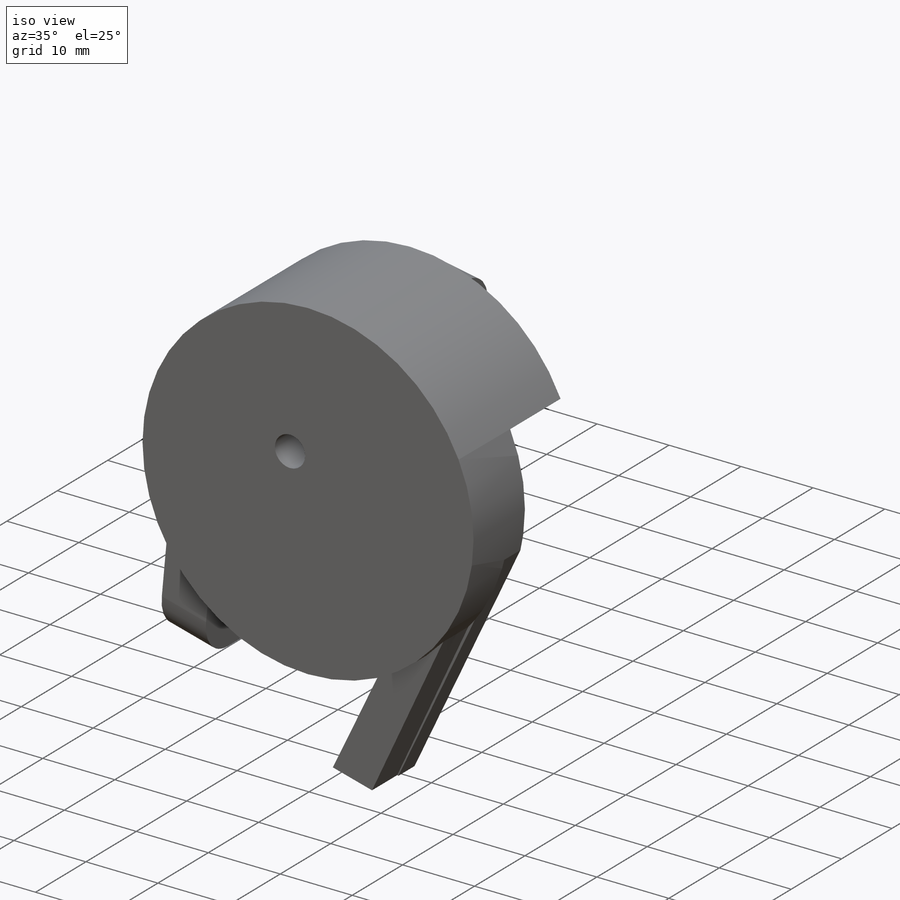
[diagram: iso view]
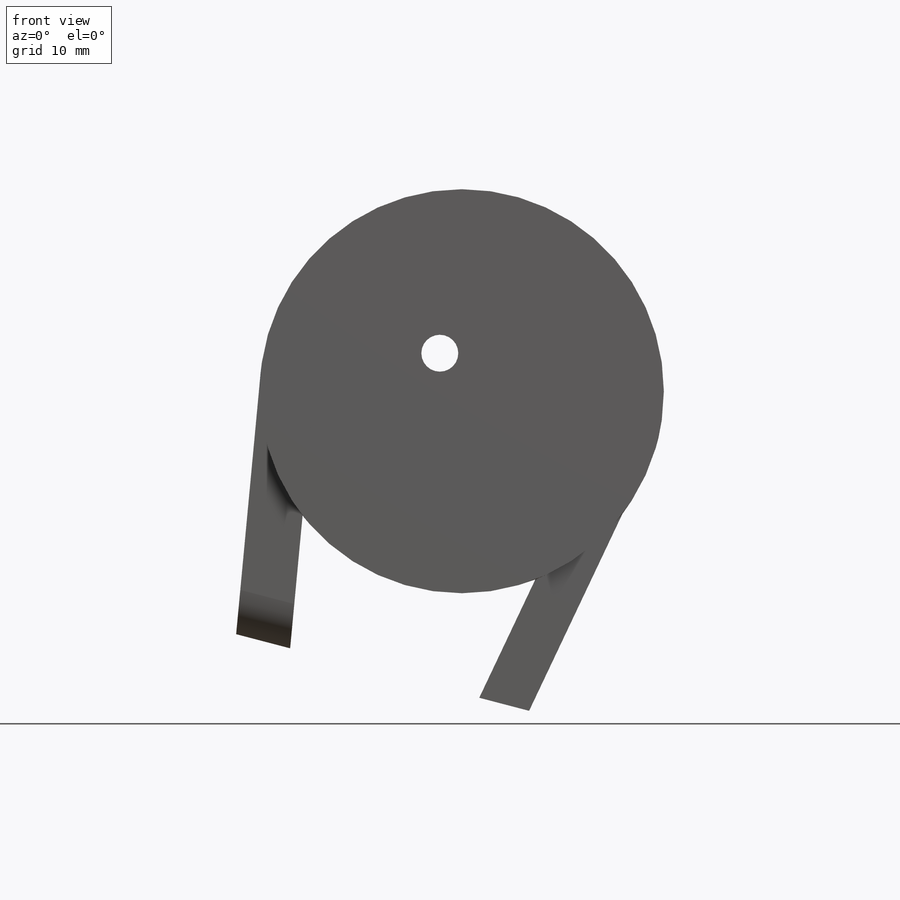
[diagram: front view]
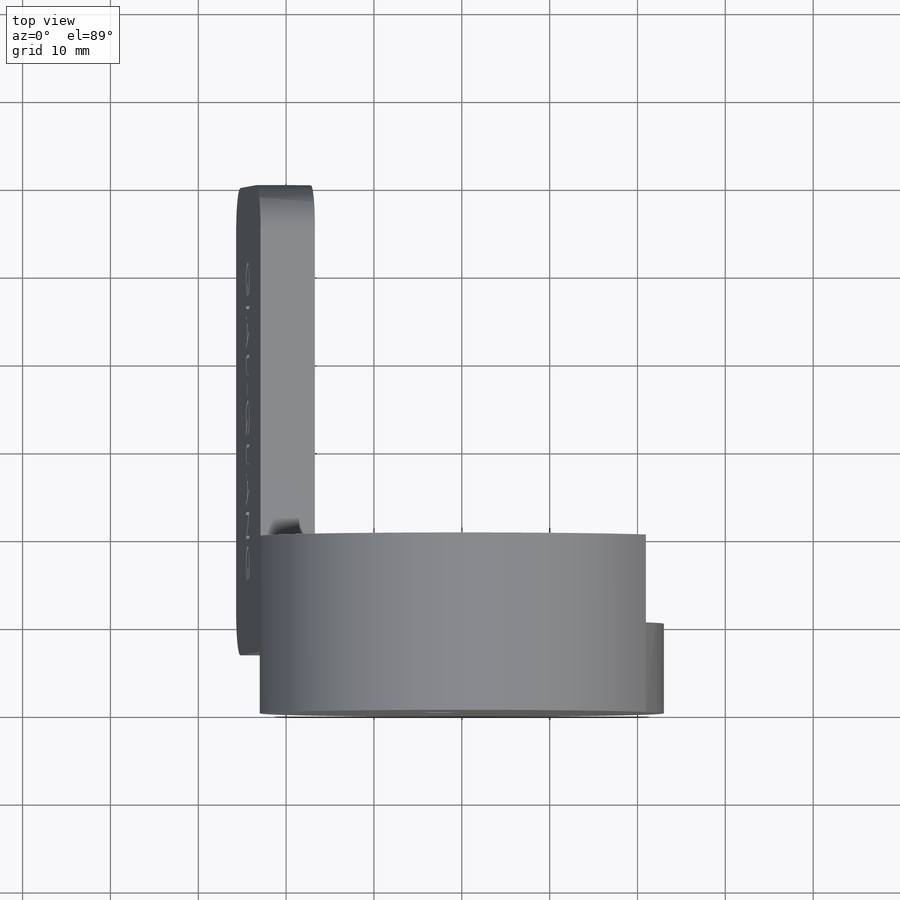
[diagram: top view]
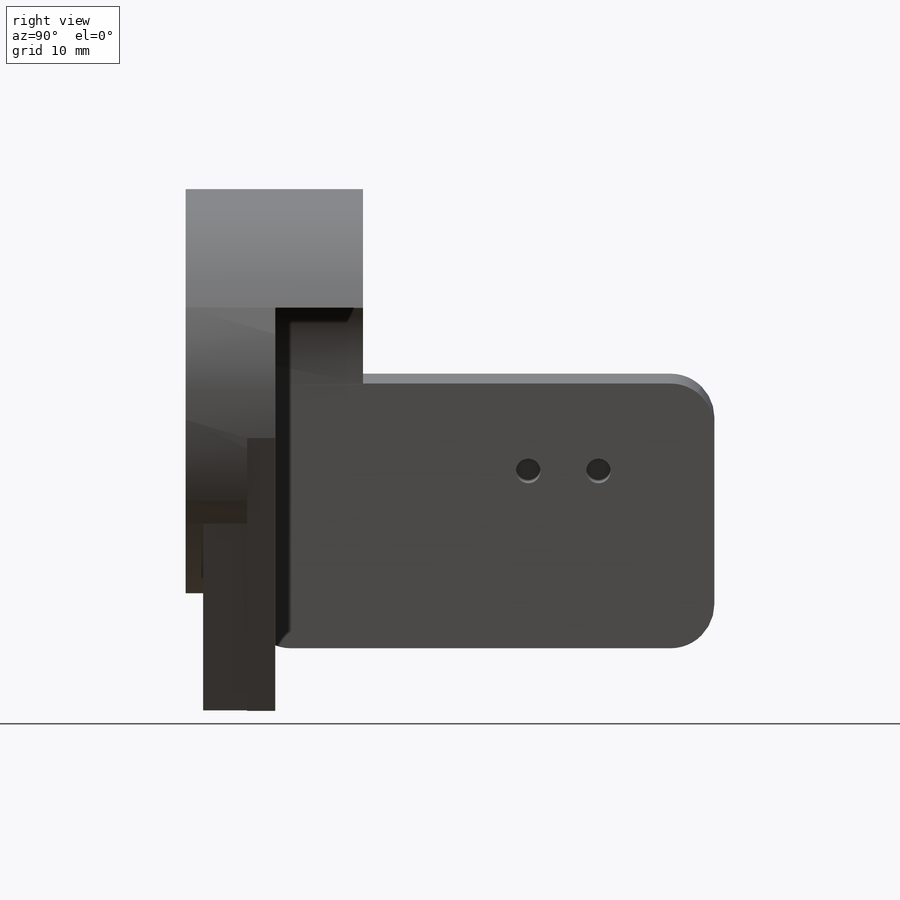
[diagram: right view]
SOLIDWORKS PART (.sldprt)
format: sldprt  version: not decoded by parser v0  size: 478,720 bytes
history: native  units: mm
features: sketch x9, cut_extrude x5, extrude x4, fillet x3, material x1 (+13 scaffold rows collapsed)
feature tree (35):
  scaffold x13  (default folders/planes/origin — collapsed)
  material  "Material <not specified>"
  sketch  "Sketch1"  dims[c1.D2=33.5mm c1.D12=~66.482668mm c1.D13=46.0mm c1.D1=0.0mm c1.D3=16.75mm c1.D4=17.0mm c1.D5=0.0mm c1.D6=~59.022251mm c2.D6=15.0deg c2.D7=~60.168434mm c3.D7=~10.081102deg c3.D4=16.75mm c3.D8=0.0mm c3.D9=0.0mm c3.D5=0.0mm c3.D6=0.0mm c4.D7=17.0mm c5.D7=90.0deg c5.D10=~15.710989mm c6.D10=90.0deg c6.D11=30.0mm c6.D12=0.0mm c6.D14=25.0mm c6.D15=23.0mm c6.D16=~76.39003mm c7.D16=180.0deg c7.D17=~81.366269mm c8.D17=180.0deg c8.D18=~21.949922mm c9.D18=0.0deg c9.D19=17.0mm c10.D19=160.0deg c10.D20=~75.165073mm c10.D14=23.0mm c11.D20=~0.01833mm c11.D5=0.0mm c11.D6=30.0mm]
  extrude  "Boss-Extrude3"  Depth=13.2mm
  sketch  "Sketch2"  dims[c1.D1=0.0mm c1.D2=~27.718421mm c2.D2=180.0deg c2.D3=~0.469035mm c2.D1=0.0mm c3.D2=~4.964034mm c4.D2=0.0deg c5.D2=0.0mm c5.D3=~27.718421mm c6.D3=180.0deg c6.D4=~27.981025mm c7.D4=0.0deg c7.D5=0.0mm c7.D6=0.0mm]
  extrude  "Boss-Extrude4"  Depth=40mm
  sketch  "Sketch3"  dims[c1.D2=46.0mm c1.D1=0.0mm c2.D2=5.0mm]
  extrude  "Boss-Extrude5"  Depth=7mm
  sketch  "Sketch4"  dims[c1.D3=~4.139232mm c1.D1=5.0mm c1.D2=14.0mm c2.D3=~9.922487mm c2.D1=5.0mm]
  cut_extrude  "Cut-Extrude1"  Depth=10mm
  sketch  "Sketch6"
  cut_extrude  "Cut-Extrude2"  Depth=10mm
  sketch  "Sketch7"  dims[c1.D1=~5.626867mm c2.D1=180.0deg c2.D2=0.0mm c2.D3=~5.321579mm]
  extrude  "Boss-Extrude6"  Depth=5mm
  sketch  "Sketch11"
  cut_extrude  "Cut-Extrude5"  Depth=5mm
  fillet  "Fillet5"  Radius=5mm
  fillet  "Fillet6"  Radius=5mm
  fillet  "Fillet7"  Radius=5mm
  sketch  "Sketch12"  dims[c1.D1=2.8mm c1.D2=2.8mm c1.D3=2.8mm c2.D1=~1.863099mm c2.D2=32.0mm c2.D3=10.0mm]
  cut_extrude  "Cut-Extrude6"  Depth=4mm
  sketch  "Sketch13"  dims[c1.D1=2.8mm c1.D2=2.8mm c1.D3=2.8mm c2.D2=10.0mm c2.D3=8.0mm]
  cut_extrude  "Cut-Extrude7"  Depth=4mm
decode coverage: 19 of 21 modeling features carry decoded parameters
note: ~ marks probable driven/reference dimensions
note: suppression state not decoded; provenance and decode notes live in map.json
